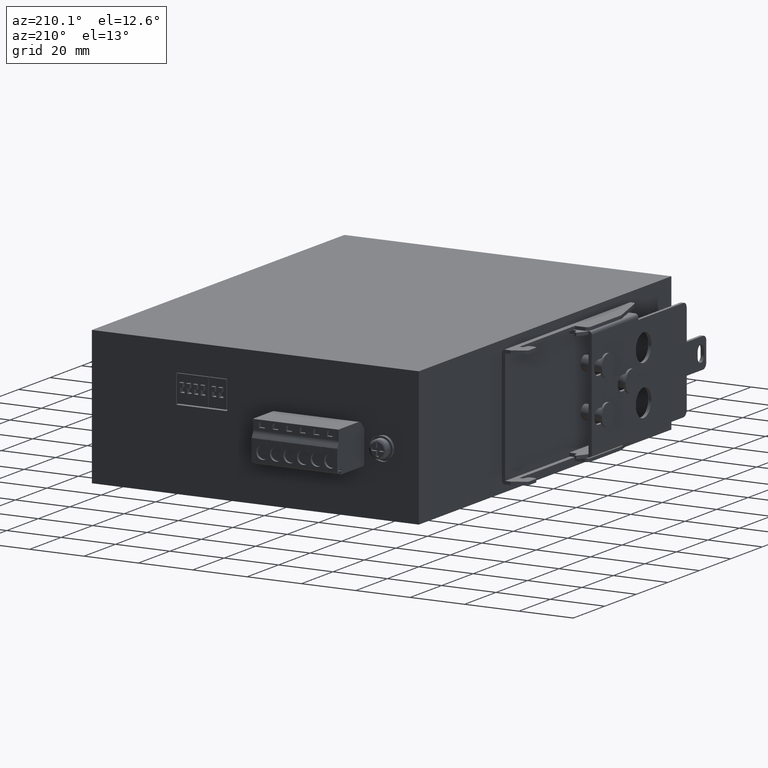
[diagram: clean part render]
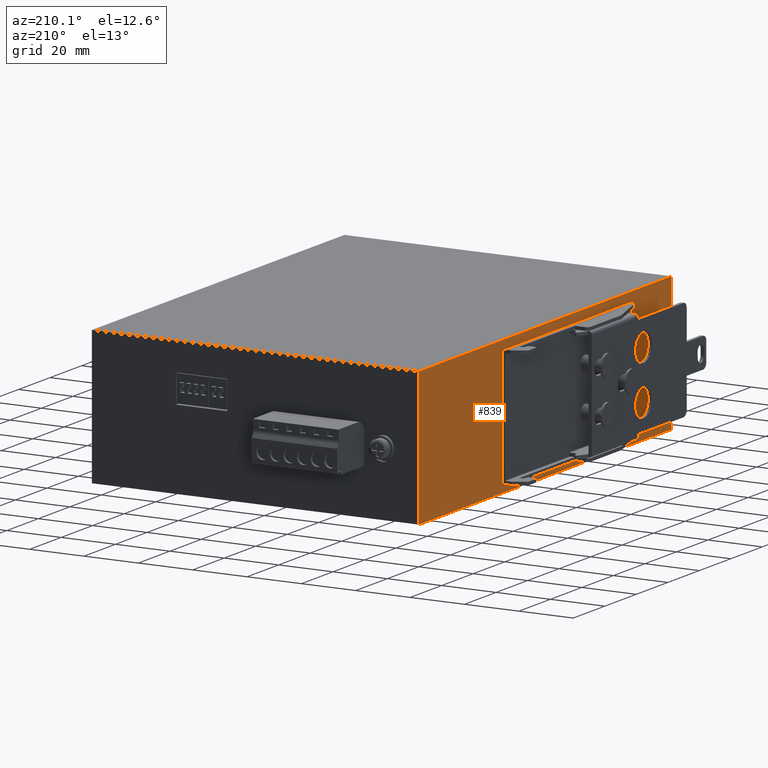
[diagram: same view with one face highlighted and labeled with its STEP entity id]
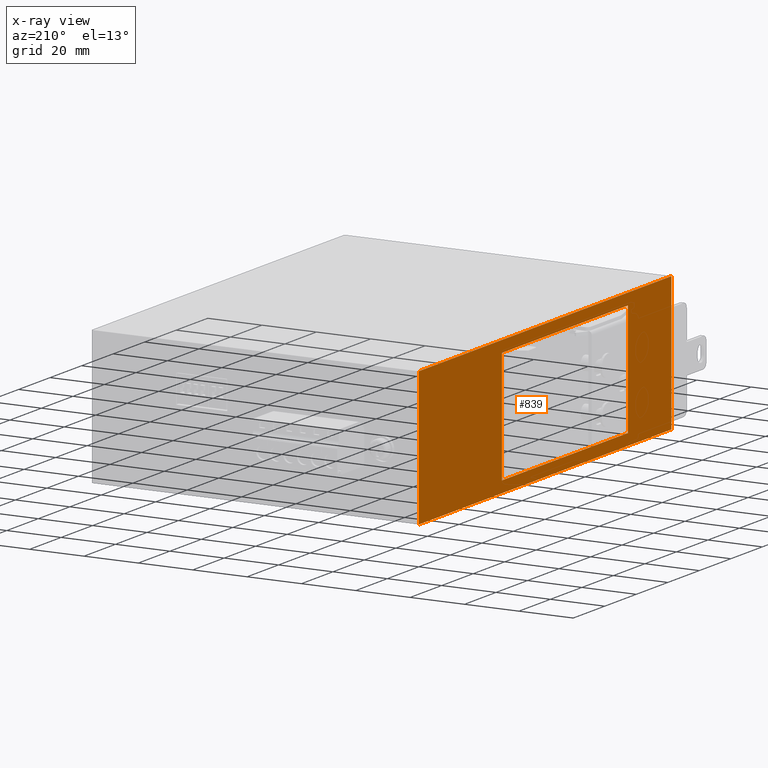
[diagram: x-ray of the same camera — body ghosted, the highlighted face saturated]
A machine part, auxiliary view. The second image highlights one B-rep face of the part: STEP entity #839.
The next image is the same camera in x-ray: the body ghosted, the highlighted face saturated — about 0% of this face is hidden behind the body in this view.
In plain terms, the highlighted planar face has unit normal (1, -0, 0).
Its self-contained STEP definition (entity closure, byte-faithful):
#79 = VERTEX_POINT ( 'NONE', #370 ) ;
#83 = LINE ( 'NONE', #10578, #10904 ) ;
#243 = LINE ( 'NONE', #3025, #13022 ) ;
#370 = CARTESIAN_POINT ( 'NONE',  ( 0.1181102362204724532, 4.236220472440945350, 0.1653543307086614567 ) ) ;
#689 = DIRECTION ( 'NONE',  ( -0.000000000000000000, -0.000000000000000000, 1.000000000000000000 ) ) ;
#788 = DIRECTION ( 'NONE',  ( 0.000000000000000000, 1.000000000000000000, 0.000000000000000000 ) ) ;
#839 = ADVANCED_FACE ( 'NONE', ( #16196, #13567 ), #8232, .F. ) ;
#988 = EDGE_LOOP ( 'NONE', ( #4078, #3441, #1063, #14030 ) ) ;
#1063 = ORIENTED_EDGE ( 'NONE', *, *, #14707, .F. ) ;
#1203 = DIRECTION ( 'NONE',  ( 0.000000000000000000, 1.000000000000000000, 0.000000000000000000 ) ) ;
#1322 = EDGE_CURVE ( 'NONE', #3790, #13883, #15451, .T. ) ;
#1627 = LINE ( 'NONE', #15008, #8286 ) ;
#1942 = VECTOR ( 'NONE', #15376, 39.37007874015748143 ) ;
#1943 = EDGE_LOOP ( 'NONE', ( #15600, #11996, #4161, #16973 ) ) ;
#2342 = DIRECTION ( 'NONE',  ( 0.000000000000000000, 1.000000000000000000, 0.000000000000000000 ) ) ;
#2620 = CARTESIAN_POINT ( 'NONE',  ( 0.1181102362204724532, 1.086614173228346525, 0.1653543307086614567 ) ) ;
#3018 = VECTOR ( 'NONE', #2342, 39.37007874015748143 ) ;
#3025 = CARTESIAN_POINT ( 'NONE',  ( 0.1181102362204724532, 1.086614173228346525, 0.000000000000000000 ) ) ;
#3153 = CARTESIAN_POINT ( 'NONE',  ( 0.1181102362204724532, 0.000000000000000000, 0.000000000000000000 ) ) ;
#3336 = CARTESIAN_POINT ( 'NONE',  ( 0.1181102362204724532, 1.086614173228346525, 1.803149606299212726 ) ) ;
#3441 = ORIENTED_EDGE ( 'NONE', *, *, #6055, .F. ) ;
#3472 = CARTESIAN_POINT ( 'NONE',  ( 0.1181102362204724532, 0.000000000000000000, 0.000000000000000000 ) ) ;
#3580 = CARTESIAN_POINT ( 'NONE',  ( 0.1181102362204724532, 0.000000000000000000, 1.803149606299212726 ) ) ;
#3790 = VERTEX_POINT ( 'NONE', #11807 ) ;
#3911 = VERTEX_POINT ( 'NONE', #2620 ) ;
#4078 = ORIENTED_EDGE ( 'NONE', *, *, #6085, .F. ) ;
#4101 = VECTOR ( 'NONE', #788, 39.37007874015748143 ) ;
#4161 = ORIENTED_EDGE ( 'NONE', *, *, #11974, .T. ) ;
#4262 = LINE ( 'NONE', #8190, #16167 ) ;
#4512 = DIRECTION ( 'NONE',  ( -0.000000000000000000, -0.000000000000000000, 1.000000000000000000 ) ) ;
#4675 = CARTESIAN_POINT ( 'NONE',  ( 0.1181102362204725087, 6.311023622047245318, 1.968503937007874072 ) ) ;
#5237 = EDGE_CURVE ( 'NONE', #15370, #16993, #13988, .T. ) ;
#5498 = DIRECTION ( 'NONE',  ( 0.000000000000000000, 0.000000000000000000, -1.000000000000000000 ) ) ;
#5882 = DIRECTION ( 'NONE',  ( 0.000000000000000000, 0.000000000000000000, -1.000000000000000000 ) ) ;
#6055 = EDGE_CURVE ( 'NONE', #79, #3911, #1627, .T. ) ;
#6085 = EDGE_CURVE ( 'NONE', #3911, #10700, #243, .T. ) ;
#6177 = CARTESIAN_POINT ( 'NONE',  ( 0.1181102362204725087, 0.000000000000000000, 0.000000000000000000 ) ) ;
#8190 = CARTESIAN_POINT ( 'NONE',  ( 0.1181102362204724532, 4.236220472440945350, 0.000000000000000000 ) ) ;
#8232 = PLANE ( 'NONE',  #15015 ) ;
#8286 = VECTOR ( 'NONE', #13778, 39.37007874015748143 ) ;
#10578 = CARTESIAN_POINT ( 'NONE',  ( 0.1181102362204725503, 6.311023622047245318, 1.968503937007874072 ) ) ;
#10700 = VERTEX_POINT ( 'NONE', #3336 ) ;
#10904 = VECTOR ( 'NONE', #1203, 39.37007874015748143 ) ;
#11238 = VERTEX_POINT ( 'NONE', #12593 ) ;
#11537 = CARTESIAN_POINT ( 'NONE',  ( 0.1181102362204724532, 0.000000000000000000, 0.000000000000000000 ) ) ;
#11807 = CARTESIAN_POINT ( 'NONE',  ( 0.1181102362204725087, 0.000000000000000000, 1.968503937007874072 ) ) ;
#11974 = EDGE_CURVE ( 'NONE', #3790, #16993, #83, .T. ) ;
#11996 = ORIENTED_EDGE ( 'NONE', *, *, #1322, .F. ) ;
#12593 = CARTESIAN_POINT ( 'NONE',  ( 0.1181102362204724532, 4.236220472440945350, 1.803149606299212726 ) ) ;
#13022 = VECTOR ( 'NONE', #4512, 39.37007874015748143 ) ;
#13109 = LINE ( 'NONE', #11537, #3018 ) ;
#13120 = EDGE_CURVE ( 'NONE', #10700, #11238, #15822, .T. ) ;
#13567 = FACE_BOUND ( 'NONE', #988, .T. ) ;
#13778 = DIRECTION ( 'NONE',  ( -0.000000000000000000, -1.000000000000000000, -0.000000000000000000 ) ) ;
#13883 = VERTEX_POINT ( 'NONE', #6177 ) ;
#13926 = VECTOR ( 'NONE', #689, 39.37007874015748143 ) ;
#13988 = LINE ( 'NONE', #16601, #13926 ) ;
#14030 = ORIENTED_EDGE ( 'NONE', *, *, #13120, .F. ) ;
#14707 = EDGE_CURVE ( 'NONE', #11238, #79, #4262, .T. ) ;
#14715 = CARTESIAN_POINT ( 'NONE',  ( 0.1181102362204725087, 6.311023622047245318, 0.000000000000000000 ) ) ;
#15008 = CARTESIAN_POINT ( 'NONE',  ( 0.1181102362204724532, 0.000000000000000000, 0.1653543307086614567 ) ) ;
#15015 = AXIS2_PLACEMENT_3D ( 'NONE', #3153, #15392, #5882 ) ;
#15370 = VERTEX_POINT ( 'NONE', #14715 ) ;
#15376 = DIRECTION ( 'NONE',  ( 0.000000000000000000, 0.000000000000000000, -1.000000000000000000 ) ) ;
#15392 = DIRECTION ( 'NONE',  ( 1.000000000000000000, -0.000000000000000000, 0.000000000000000000 ) ) ;
#15451 = LINE ( 'NONE', #3472, #1942 ) ;
#15471 = EDGE_CURVE ( 'NONE', #13883, #15370, #13109, .T. ) ;
#15600 = ORIENTED_EDGE ( 'NONE', *, *, #15471, .F. ) ;
#15822 = LINE ( 'NONE', #3580, #4101 ) ;
#16167 = VECTOR ( 'NONE', #5498, 39.37007874015748143 ) ;
#16196 = FACE_OUTER_BOUND ( 'NONE', #1943, .T. ) ;
#16601 = CARTESIAN_POINT ( 'NONE',  ( 0.1181102362204724532, 6.311023622047245318, 0.000000000000000000 ) ) ;
#16973 = ORIENTED_EDGE ( 'NONE', *, *, #5237, .F. ) ;
#16993 = VERTEX_POINT ( 'NONE', #4675 ) ;